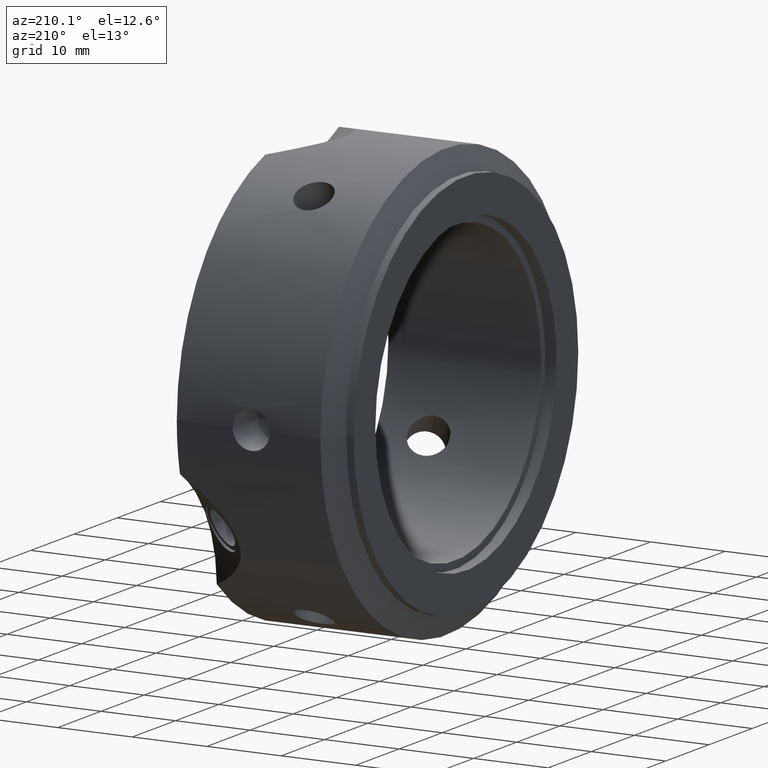
[diagram: clean part render]
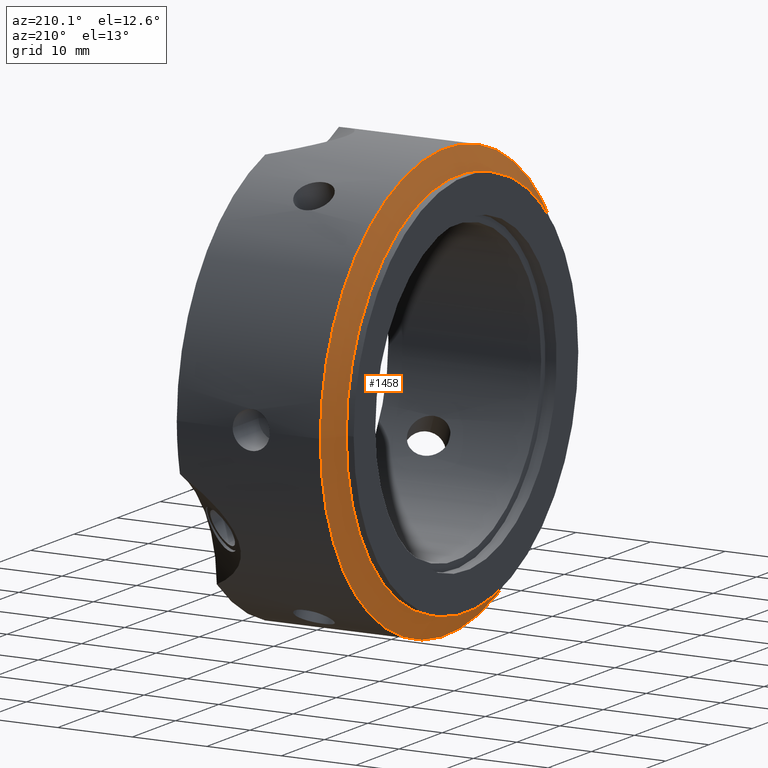
[diagram: same view with one face highlighted and labeled with its STEP entity id]
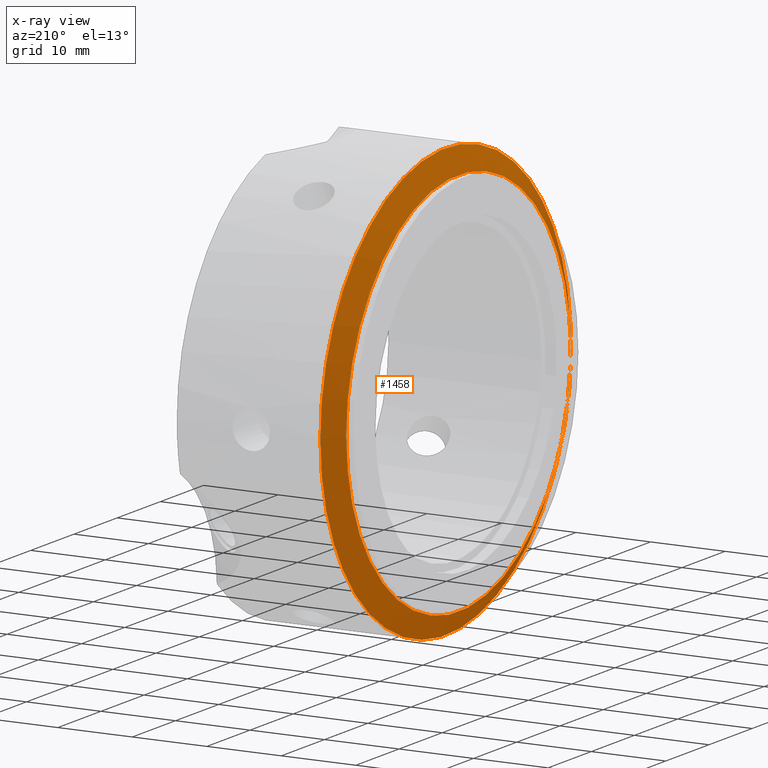
[diagram: x-ray of the same camera — body ghosted, the highlighted face saturated]
A machine part, auxiliary view. The second image highlights one B-rep face of the part: STEP entity #1458.
The next image is the same camera in x-ray: the body ghosted, the highlighted face saturated — about 0% of this face is hidden behind the body in this view.
In plain terms, the highlighted conical surface has half-angle 60 deg.
Its self-contained STEP definition (entity closure, byte-faithful):
#1087=CARTESIAN_POINT('',(2.732050807568865,29.0,0.0));
#1088=VERTEX_POINT('',#1087);
#1089=CARTESIAN_POINT('',(2.732050807568865,0.0,0.0));
#1090=DIRECTION('',(1.0,0.0,0.0));
#1091=DIRECTION('',(0.0,1.0,0.0));
#1092=AXIS2_PLACEMENT_3D('',#1089,#1090,#1091);
#1093=CIRCLE('',#1092,29.0);
#1094=EDGE_CURVE('',#1088,#1088,#1093,.T.);
#1432=CARTESIAN_POINT('',(0.999999999999991,26.0,0.0));
#1433=VERTEX_POINT('',#1432);
#1434=CARTESIAN_POINT('',(0.999999999999991,0.0,0.0));
#1435=DIRECTION('',(1.0,0.0,0.0));
#1436=DIRECTION('',(0.0,1.0,0.0));
#1437=AXIS2_PLACEMENT_3D('',#1434,#1435,#1436);
#1438=CIRCLE('',#1437,26.0);
#1439=EDGE_CURVE('',#1433,#1433,#1438,.T.);
#1447=CARTESIAN_POINT('',(1.866025403784428,0.0,0.0));
#1448=DIRECTION('',(1.0,0.0,0.0));
#1449=DIRECTION('',(0.0,1.0,0.0));
#1450=AXIS2_PLACEMENT_3D('',#1447,#1448,#1449);
#1451=CONICAL_SURFACE('',#1450,27.5,60.000000000000043);
#1452=ORIENTED_EDGE('',*,*,#1094,.F.);
#1453=EDGE_LOOP('',(#1452));
#1454=FACE_OUTER_BOUND('',#1453,.T.);
#1455=ORIENTED_EDGE('',*,*,#1439,.T.);
#1456=EDGE_LOOP('',(#1455));
#1457=FACE_BOUND('',#1456,.T.);
#1458=ADVANCED_FACE('',(#1454,#1457),#1451,.T.);